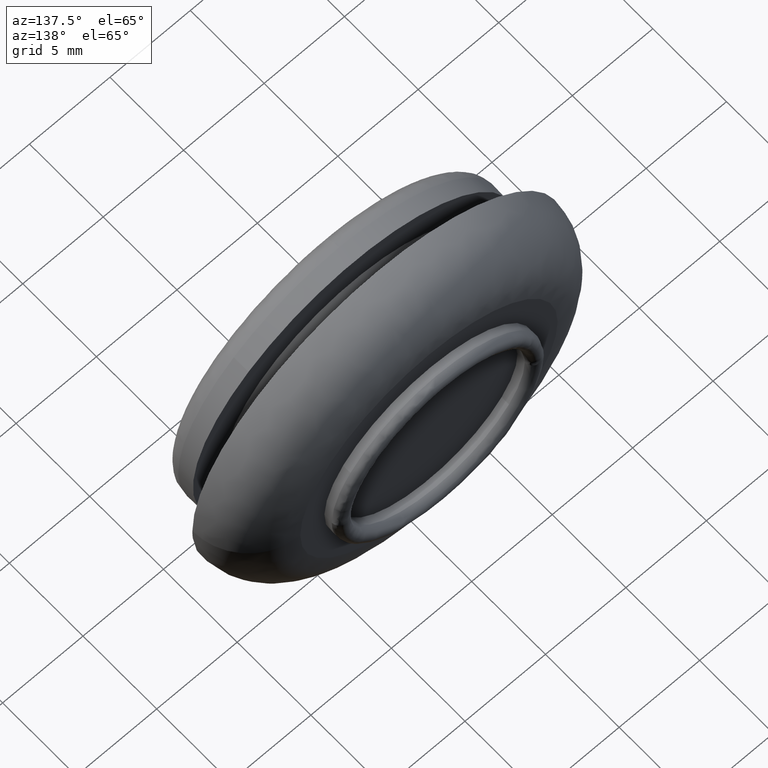
[diagram: clean part render]
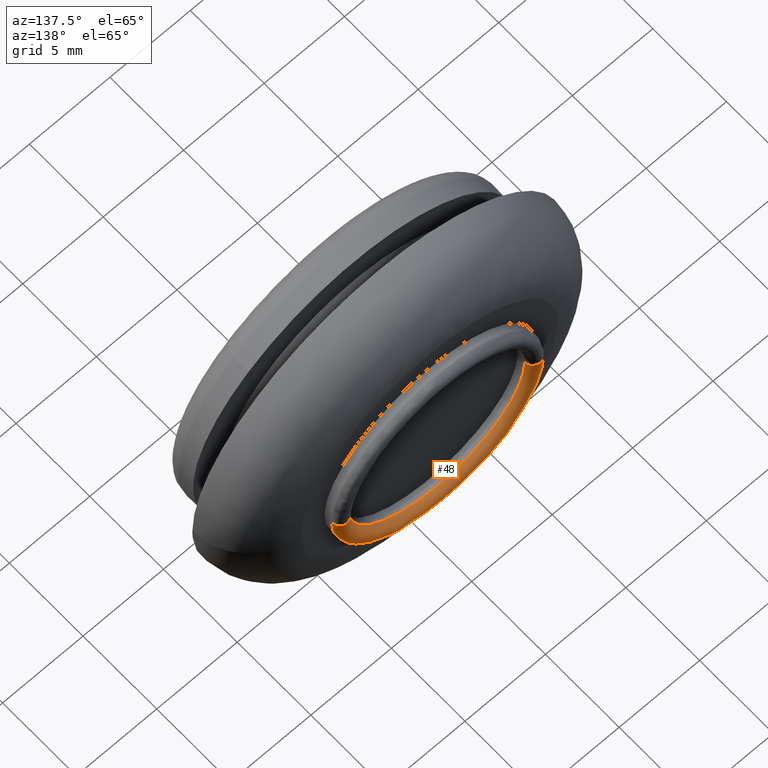
[diagram: same view with one face highlighted and labeled with its STEP entity id]
A machine part, auxiliary view. The second image highlights one B-rep face of the part: STEP entity #48.
In plain terms, the highlighted face is a freeform B-spline surface patch.
Its self-contained STEP definition (entity closure, byte-faithful):
#48=ADVANCED_FACE('',(#147),#146,.T.);
#146=( BOUNDED_SURFACE() B_SPLINE_SURFACE( 2,2,((#372,#373,#374,#375,#376),(#377,#378,#379,#380,#381),(#382,#383,#384,#385,#386),(#387,#388,#389,#390,#391),(#392,#393,#394,#395,#396)), .UNSPECIFIED.,.F.,.F.,.F.) B_SPLINE_SURFACE_WITH_KNOTS((3,2,3),(3,2,3),(0.00000000000E+000,5.00000000000E-001,1.00000000000E+000),(0.00000000000E+000,5.00000000000E-001,1.00000000000E+000), .UNSPECIFIED. ) GEOMETRIC_REPRESENTATION_ITEM() RATIONAL_B_SPLINE_SURFACE(((1.00000000000E+000,7.07106780491E-001,1.00000000000E+000,7.07106780491E-001,1.00000000000E+000),(7.07106781187E-001,4.99999999508E-001,7.07106781187E-001,4.99999999508E-001,7.07106781187E-001),(1.00000000000E+000,7.07106780491E-001,1.00000000000E+000,7.07106780491E-001,1.00000000000E+000),(7.07106781187E-001,4.99999999508E-001,7.07106781187E-001,4.99999999508E-001,7.07106781187E-001),(1.00000000000E+000,7.07106780491E-001,1.00000000000E+000,7.07106780491E-001,1.00000000000E+000))) REPRESENTATION_ITEM('') SURFACE() );
#147=FACE_OUTER_BOUND('',#397,.T.);
#372=CARTESIAN_POINT('',(-5.50000000000E+000,7.59999999803E+000,-3.70485164079E-014));
#373=CARTESIAN_POINT('',(-5.49999999803E+000,8.09999999902E+000,-3.03361172918E-014));
#374=CARTESIAN_POINT('',(-5.99999999902E+000,8.10000000000E+000,-3.03973475964E-014));
#375=CARTESIAN_POINT('',(-6.50000000000E+000,8.10000000098E+000,-3.04585779010E-014));
#376=CARTESIAN_POINT('',(-6.50000000000E+000,7.60000000000E+000,-3.71709770169E-014));
#377=CARTESIAN_POINT('',(-5.50000000000E+000,7.59999999803E+000,-5.50000000000E+000));
#378=CARTESIAN_POINT('',(-5.49999999803E+000,8.09999999902E+000,-5.49999999803E+000));
#379=CARTESIAN_POINT('',(-5.99999999902E+000,8.10000000000E+000,-5.99999999902E+000));
#380=CARTESIAN_POINT('',(-6.50000000000E+000,8.10000000098E+000,-6.50000000000E+000));
#381=CARTESIAN_POINT('',(-6.50000000000E+000,7.60000000000E+000,-6.50000000000E+000));
#382=CARTESIAN_POINT('',(1.80184708580E-012,7.59999999803E+000,-5.50000000000E+000));
#383=CARTESIAN_POINT('',(1.70582310717E-012,8.09999999902E+000,-5.49999999803E+000));
#384=CARTESIAN_POINT('',(1.70585372113E-012,8.10000000000E+000,-5.99999999902E+000));
#385=CARTESIAN_POINT('',(1.70588433509E-012,8.10000000098E+000,-6.50000000000E+000));
#386=CARTESIAN_POINT('',(1.80190831372E-012,7.60000000000E+000,-6.50000000000E+000));
#387=CARTESIAN_POINT('',(5.50000000000E+000,7.59999999804E+000,-5.50000000000E+000));
#388=CARTESIAN_POINT('',(5.49999999804E+000,8.09999999902E+000,-5.49999999803E+000));
#389=CARTESIAN_POINT('',(5.99999999902E+000,8.10000000000E+000,-5.99999999902E+000));
#390=CARTESIAN_POINT('',(6.50000000000E+000,8.10000000099E+000,-6.50000000000E+000));
#391=CARTESIAN_POINT('',(6.50000000000E+000,7.60000000000E+000,-6.50000000000E+000));
#392=CARTESIAN_POINT('',(5.50000000000E+000,7.59999999804E+000,-3.63750051582E-014));
#393=CARTESIAN_POINT('',(5.49999999804E+000,8.09999999902E+000,-2.96626060424E-014));
#394=CARTESIAN_POINT('',(5.99999999902E+000,8.10000000000E+000,-2.96626080514E-014));
#395=CARTESIAN_POINT('',(6.50000000000E+000,8.10000000099E+000,-2.96626100605E-014));
#396=CARTESIAN_POINT('',(6.50000000000E+000,7.60000000000E+000,-3.63750091763E-014));
#397=EDGE_LOOP('',(#569,#570,#571,#572,#573,#574,#575,#576,#577));
#569=ORIENTED_EDGE('',*,*,#705,.F.);
#570=ORIENTED_EDGE('',*,*,#706,.F.);
#571=ORIENTED_EDGE('',*,*,#707,.F.);
#572=ORIENTED_EDGE('',*,*,#708,.F.);
#573=ORIENTED_EDGE('',*,*,#709,.T.);
#574=ORIENTED_EDGE('',*,*,#710,.T.);
#575=ORIENTED_EDGE('',*,*,#711,.T.);
#576=ORIENTED_EDGE('',*,*,#712,.T.);
#577=ORIENTED_EDGE('',*,*,#713,.T.);
#705=EDGE_CURVE('',#1007,#1008,#1009,.T.);
#706=EDGE_CURVE('',#1015,#1007,#1016,.T.);
#707=EDGE_CURVE('',#1022,#1015,#1023,.T.);
#708=EDGE_CURVE('',#1029,#1022,#1030,.T.);
#709=EDGE_CURVE('',#1029,#1036,#1037,.T.);
#710=EDGE_CURVE('',#1036,#1043,#1044,.T.);
#711=EDGE_CURVE('',#1043,#1050,#1051,.T.);
#712=EDGE_CURVE('',#1050,#1057,#1058,.T.);
#713=EDGE_CURVE('',#1057,#1008,#1064,.T.);
#1007=VERTEX_POINT('',#1403);
#1008=VERTEX_POINT('',#1404);
#1009=(BOUNDED_CURVE() B_SPLINE_CURVE(2,(#1405,#1406,#1407),.UNSPECIFIED.,.F.,.F.) B_SPLINE_CURVE_WITH_KNOTS((3,3),(0.00000000000E+000,1.00000000000E+000),.UNSPECIFIED.) CURVE() GEOMETRIC_REPRESENTATION_ITEM() RATIONAL_B_SPLINE_CURVE((1.00000000000E+000,7.07423025383E-001,1.00000000000E+000)) REPRESENTATION_ITEM('') );
#1015=VERTEX_POINT('',#1408);
#1016=CIRCLE('',#1412,6.50000000000E+000);
#1022=VERTEX_POINT('',#1413);
#1023=CIRCLE('',#1417,6.50000000000E+000);
#1029=VERTEX_POINT('',#1418);
#1030=(BOUNDED_CURVE() B_SPLINE_CURVE(2,(#1419,#1420,#1421,#1422,#1423),.UNSPECIFIED.,.F.,.F.) B_SPLINE_CURVE_WITH_KNOTS((3,2,3),(0.00000000000E+000,5.00000000000E-001,1.00000000000E+000),.UNSPECIFIED.) CURVE() GEOMETRIC_REPRESENTATION_ITEM() RATIONAL_B_SPLINE_CURVE((1.00000000000E+000,7.07106780491E-001,1.00000000000E+000,7.07106780491E-001,1.00000000000E+000)) REPRESENTATION_ITEM('') );
#1036=VERTEX_POINT('',#1424);
#1037=CIRCLE('',#1428,5.50000000000E+000);
#1043=VERTEX_POINT('',#1429);
#1044=CIRCLE('',#1433,5.50000000000E+000);
#1050=VERTEX_POINT('',#1434);
#1051=CIRCLE('',#1438,5.50000000000E+000);
#1057=VERTEX_POINT('',#1439);
#1058=CIRCLE('',#1443,5.50000000002E+000);
#1064=(BOUNDED_CURVE() B_SPLINE_CURVE(2,(#1444,#1445,#1446,#1447,#1448),.UNSPECIFIED.,.F.,.F.) B_SPLINE_CURVE_WITH_KNOTS((3,2,3),(0.00000000000E+000,5.00000000000E-001,1.00000000000E+000),.UNSPECIFIED.) CURVE() GEOMETRIC_REPRESENTATION_ITEM() RATIONAL_B_SPLINE_CURVE((7.50000000000E-001,5.30330085368E-001,7.50000000000E-001,5.30330085368E-001,7.50000000000E-001)) REPRESENTATION_ITEM('') );
#1403=CARTESIAN_POINT('',(0.00000000000E+000,7.60000000000E+000,-6.50000000000E+000));
#1404=CARTESIAN_POINT('',(6.50000000000E+000,7.60000000000E+000,-3.58231962612E-014));
#1405=CARTESIAN_POINT('',(-1.66533450034E-016,7.60000000001E+000,-6.50000000001E+000));
#1406=CARTESIAN_POINT('',(6.49418722017E+000,7.60000000000E+000,-6.50000000001E+000));
#1407=CARTESIAN_POINT('',(6.50000000000E+000,7.60000000000E+000,-3.58231962612E-014));
#1408=CARTESIAN_POINT('',(-5.33689754190E+000,7.59999999985E+000,-3.71046151136E+000));
#1409=CARTESIAN_POINT('',(2.22044604925E-015,7.60000000001E+000,4.44089209850E-016));
#1410=DIRECTION('',(3.50320974777E-012,-1.00000000000E+000,3.88027612648E-011));
#1411=DIRECTION('',(9.97565673840E-001,7.88839079528E-013,-6.97332515757E-002));
#1412=AXIS2_PLACEMENT_3D('',#1409,#1410,#1411);
#1413=CARTESIAN_POINT('',(-6.50000000000E+000,7.59999999999E+000,-3.71335189688E-014));
#1414=CARTESIAN_POINT('',(2.22044604925E-015,7.60000000001E+000,4.44089209850E-016));
#1415=DIRECTION('',(3.50320974777E-012,-1.00000000000E+000,3.88027612648E-011));
#1416=DIRECTION('',(9.97565673840E-001,7.88839079528E-013,-6.97332515757E-002));
#1417=AXIS2_PLACEMENT_3D('',#1414,#1415,#1416);
#1418=CARTESIAN_POINT('',(-5.50000000000E+000,7.59999999993E+000,-3.70299536630E-014));
#1419=CARTESIAN_POINT('',(-5.50000000000E+000,7.59999999803E+000,-3.70485164079E-014));
#1420=CARTESIAN_POINT('',(-5.49999999803E+000,8.09999999902E+000,-3.03361172918E-014));
#1421=CARTESIAN_POINT('',(-5.99999999902E+000,8.10000000000E+000,-3.03973475964E-014));
#1422=CARTESIAN_POINT('',(-6.50000000000E+000,8.10000000098E+000,-3.04585779010E-014));
#1423=CARTESIAN_POINT('',(-6.50000000000E+000,7.60000000000E+000,-3.71709770169E-014));
#1424=CARTESIAN_POINT('',(-4.51583638167E+000,7.59999999878E+000,-3.13962127875E+000));
#1425=CARTESIAN_POINT('',(-1.33226762955E-015,7.60000000011E+000,-2.22044604925E-015));
#1426=DIRECTION('',(3.40215170093E-011,-1.00000000000E+000,3.76790807738E-010));
#1427=DIRECTION('',(9.97565673840E-001,7.66384935311E-012,-6.97332515757E-002));
#1428=AXIS2_PLACEMENT_3D('',#1425,#1426,#1427);
#1429=CARTESIAN_POINT('',(0.00000000000E+000,7.60000000000E+000,-5.50000000000E+000));
#1430=CARTESIAN_POINT('',(-1.33226762955E-015,7.60000000011E+000,-2.22044604925E-015));
#1431=DIRECTION('',(3.40215170093E-011,-1.00000000000E+000,3.76790807738E-010));
#1432=DIRECTION('',(9.97565673840E-001,7.66384935311E-012,-6.97332515757E-002));
#1433=AXIS2_PLACEMENT_3D('',#1430,#1431,#1432);
#1434=CARTESIAN_POINT('',(5.48304583850E+000,7.60000000000E+000,-4.31518635640E-001));
#1435=CARTESIAN_POINT('',(7.34523553092E-013,7.60000000000E+000,-4.84856599314E-012));
#1436=DIRECTION('',(1.44938113011E-029,-1.00000000000E+000,8.46191803497E-014));
#1437=DIRECTION('',(1.33549736926E-013,8.46191803497E-014,1.00000000000E+000));
#1438=AXIS2_PLACEMENT_3D('',#1435,#1436,#1437);
#1439=CARTESIAN_POINT('',(5.49999999427E+000,7.60000000000E+000,2.51167221932E-004));
#1440=CARTESIAN_POINT('',(-1.07873709965E-011,7.60000000008E+000,-1.69304570363E-011));
#1441=DIRECTION('',(-1.38587415746E-011,-1.00000000000E+000,-6.92729623276E-014));
#1442=DIRECTION('',(-8.21061417013E-001,1.14184217636E-011,-5.70839863265E-001));
#1443=AXIS2_PLACEMENT_3D('',#1440,#1441,#1442);
#1444=CARTESIAN_POINT('',(5.50000000000E+000,7.59999999804E+000,-3.58231962612E-014));
#1445=CARTESIAN_POINT('',(5.49999999804E+000,8.09999999902E+000,-2.88897012682E-014));
#1446=CARTESIAN_POINT('',(5.99999999902E+000,8.10000000000E+000,-2.81256499572E-014));
#1447=CARTESIAN_POINT('',(6.50000000000E+000,8.10000000099E+000,-2.86803556068E-014));
#1448=CARTESIAN_POINT('',(6.50000000000E+000,7.60000000000E+000,-3.58231962612E-014));